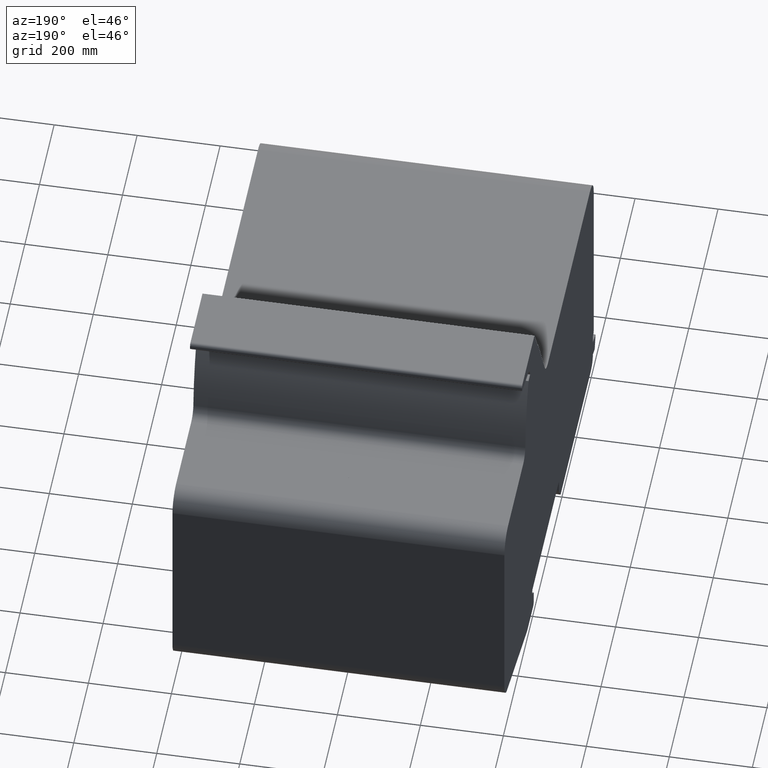
[diagram: clean part render]
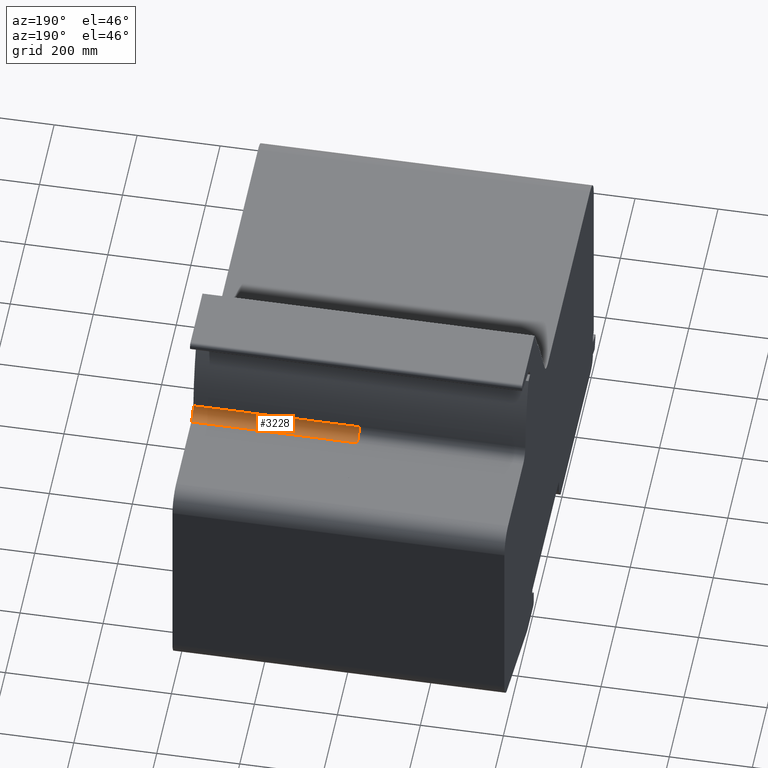
[diagram: same view with one face highlighted and labeled with its STEP entity id]
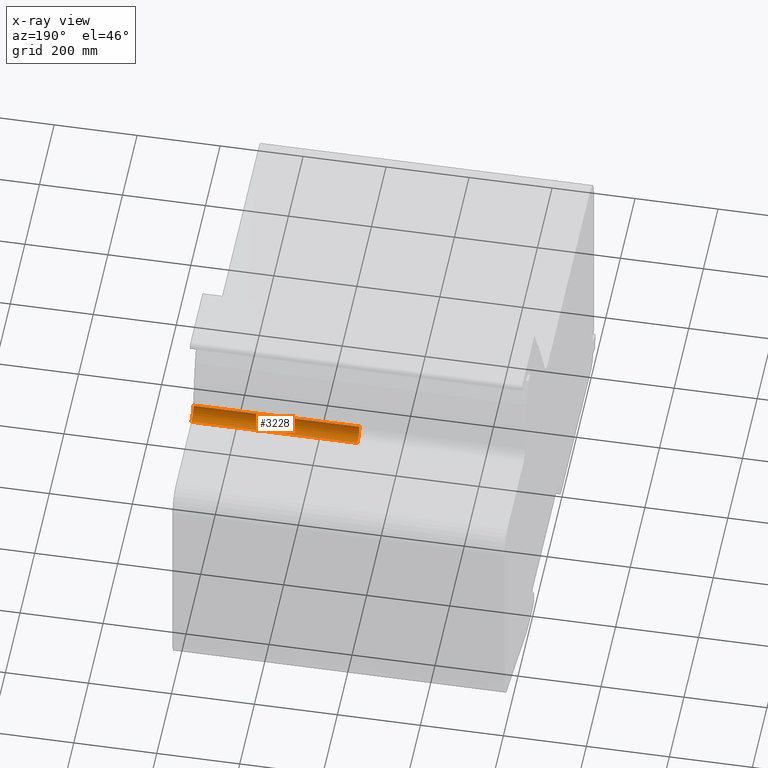
[diagram: x-ray of the same camera — body ghosted, the highlighted face saturated]
A machine part, auxiliary view. The second image highlights one B-rep face of the part: STEP entity #3228.
The next image is the same camera in x-ray: the body ghosted, the highlighted face saturated — about 0% of this face is hidden behind the body in this view.
In plain terms, the highlighted cylindrical surface (edge-blend (fillet) strip) has radius 28 mm, axis along (1, 0, 0).
Its self-contained STEP definition (entity closure, byte-faithful):
#3168=CARTESIAN_POINT('',(800.0,99.857462948040379,584.06517999301559));
#3169=VERTEX_POINT('',#3168);
#3177=CARTESIAN_POINT('',(400.0,99.857462948040379,584.06517999301559));
#3178=VERTEX_POINT('',#3177);
#3179=CARTESIAN_POINT('',(400.0,99.857462948040379,584.06517999301559));
#3180=DIRECTION('',(1.0,0.0,0.0));
#3181=VECTOR('',#3180,400.0);
#3182=LINE('',#3179,#3181);
#3183=EDGE_CURVE('',#3178,#3169,#3182,.T.);
#3196=CARTESIAN_POINT('',(400.0,127.82067613158189,585.50000000001216));
#3197=DIRECTION('',(1.0,0.0,0.0));
#3198=DIRECTION('',(0.0,-0.688751199026518,-0.724997783334221));
#3199=AXIS2_PLACEMENT_3D('',#3196,#3197,#3198);
#3200=CYLINDRICAL_SURFACE('',#3199,28.000000000011898);
#3201=CARTESIAN_POINT('',(800.0,127.82067613159994,557.50000000000023));
#3202=VERTEX_POINT('',#3201);
#3203=CARTESIAN_POINT('',(800.0,127.82067613158189,585.50000000001216));
#3204=DIRECTION('',(1.0,0.0,0.0));
#3205=DIRECTION('',(0.0,-0.688751199026518,-0.724997783334221));
#3206=AXIS2_PLACEMENT_3D('',#3203,#3204,#3205);
#3207=CIRCLE('',#3206,28.000000000011898);
#3208=EDGE_CURVE('',#3169,#3202,#3207,.T.);
#3209=ORIENTED_EDGE('',*,*,#3208,.T.);
#3210=CARTESIAN_POINT('',(400.0,127.82067613159994,557.50000000000023));
#3211=VERTEX_POINT('',#3210);
#3212=CARTESIAN_POINT('',(400.0,127.82067613159994,557.50000000000023));
#3213=DIRECTION('',(1.0,0.0,0.0));
#3214=VECTOR('',#3213,400.0);
#3215=LINE('',#3212,#3214);
#3216=EDGE_CURVE('',#3211,#3202,#3215,.T.);
#3217=ORIENTED_EDGE('',*,*,#3216,.F.);
#3218=CARTESIAN_POINT('',(400.0,127.82067613158189,585.50000000001216));
#3219=DIRECTION('',(-1.0,0.0,0.0));
#3220=DIRECTION('',(0.0,-0.688751199026518,-0.724997783334221));
#3221=AXIS2_PLACEMENT_3D('',#3218,#3219,#3220);
#3222=CIRCLE('',#3221,28.000000000011898);
#3223=EDGE_CURVE('',#3211,#3178,#3222,.T.);
#3224=ORIENTED_EDGE('',*,*,#3223,.T.);
#3225=ORIENTED_EDGE('',*,*,#3183,.T.);
#3226=EDGE_LOOP('',(#3209,#3217,#3224,#3225));
#3227=FACE_OUTER_BOUND('',#3226,.T.);
#3228=ADVANCED_FACE('',(#3227),#3200,.F.);